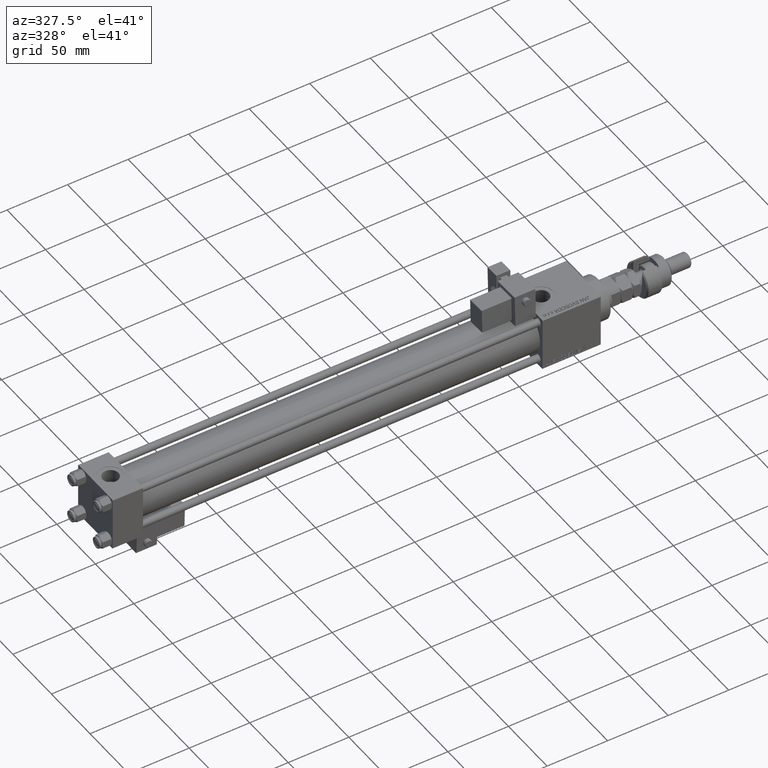
[diagram: clean part render]
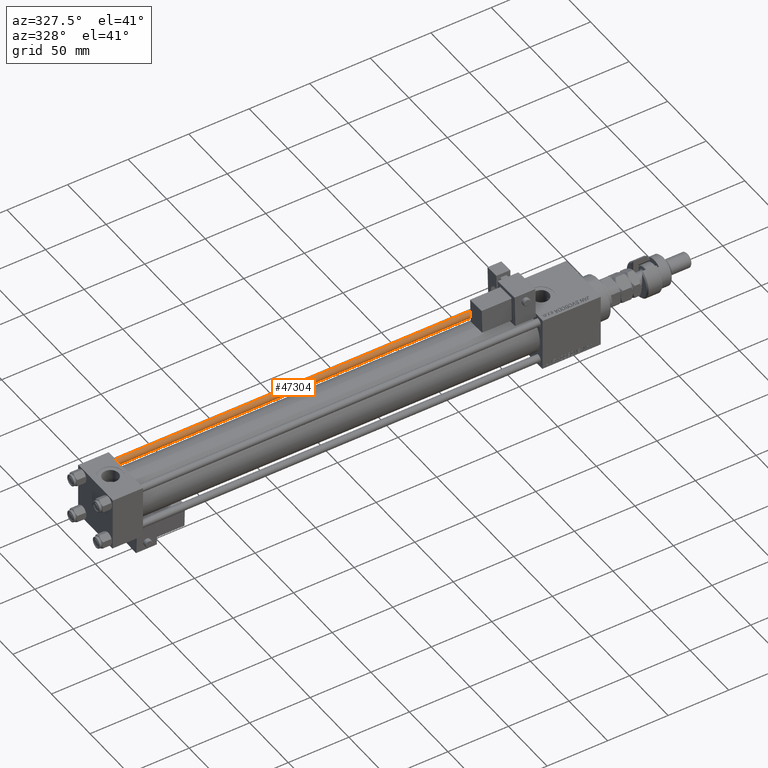
[diagram: same view with one face highlighted and labeled with its STEP entity id]
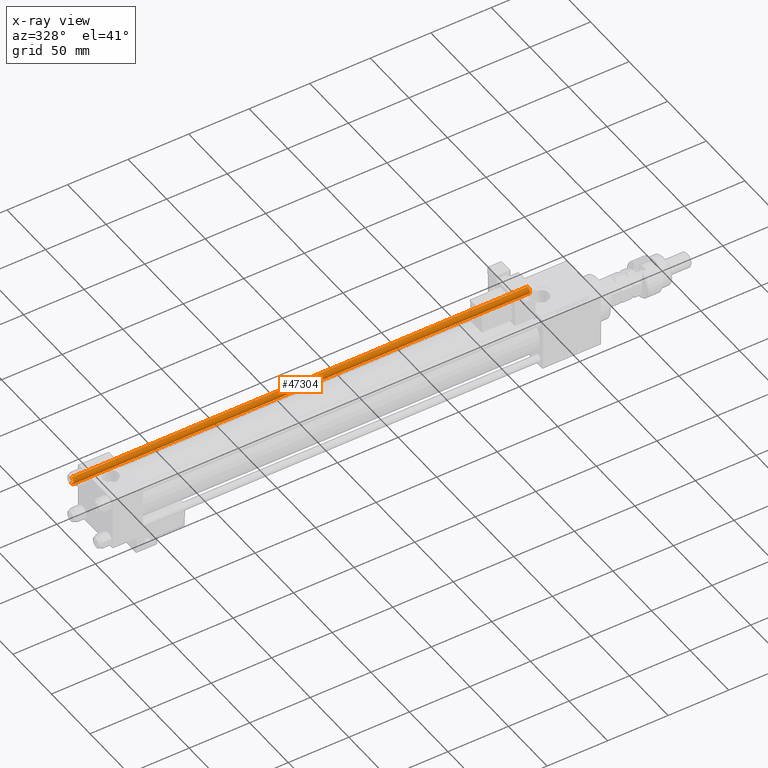
[diagram: x-ray of the same camera — body ghosted, the highlighted face saturated]
A machine part, auxiliary view. The second image highlights one B-rep face of the part: STEP entity #47304.
The next image is the same camera in x-ray: the body ghosted, the highlighted face saturated — about 0% of this face is hidden behind the body in this view.
In plain terms, the highlighted cylindrical surface (edge-blend (fillet) strip) has radius 3 mm, axis along (-1, 0, 0).
Its self-contained STEP definition (entity closure, byte-faithful):
#997 = CARTESIAN_POINT ( 'NONE',  ( -3.000000000000000444, 0.000000000000000000, 378.0000000000000000 ) ) ;
#3929 = DIRECTION ( 'NONE',  ( -0.000000000000000000, -0.000000000000000000, -1.000000000000000000 ) ) ;
#4262 = VERTEX_POINT ( 'NONE', #44256 ) ;
#4892 = DIRECTION ( 'NONE',  ( -1.000000000000000000, 0.000000000000000000, 0.000000000000000000 ) ) ;
#5092 = VERTEX_POINT ( 'NONE', #33854 ) ;
#9382 = FACE_OUTER_BOUND ( 'NONE', #21954, .T. ) ;
#11465 = DIRECTION ( 'NONE',  ( -0.000000000000000000, -0.000000000000000000, 1.000000000000000000 ) ) ;
#12887 = AXIS2_PLACEMENT_3D ( 'NONE', #18386, #23141, #39419 ) ;
#13332 = LINE ( 'NONE', #997, #35487 ) ;
#14671 = ORIENTED_EDGE ( 'NONE', *, *, #47639, .T. ) ;
#14688 = CIRCLE ( 'NONE', #12887, 3.000000000000000444 ) ;
#15308 = ORIENTED_EDGE ( 'NONE', *, *, #24925, .T. ) ;
#16194 = VECTOR ( 'NONE', #3929, 1000.000000000000000 ) ;
#18386 = CARTESIAN_POINT ( 'NONE',  ( 0.000000000000000000, 0.000000000000000000, 377.5000000000000000 ) ) ;
#19912 = CARTESIAN_POINT ( 'NONE',  ( 3.000000000000000444, 3.673940397442060361E-16, 378.0000000000000000 ) ) ;
#21954 = EDGE_LOOP ( 'NONE', ( #47255, #14671, #15308, #53078 ) ) ;
#23141 = DIRECTION ( 'NONE',  ( 0.000000000000000000, 0.000000000000000000, -1.000000000000000000 ) ) ;
#23273 = CARTESIAN_POINT ( 'NONE',  ( 3.000000000000000444, 3.673940397442060361E-16, 377.5000000000000000 ) ) ;
#24409 = LINE ( 'NONE', #19912, #16194 ) ;
#24925 = EDGE_CURVE ( 'NONE', #25485, #5092, #13332, .T. ) ;
#25485 = VERTEX_POINT ( 'NONE', #48553 ) ;
#30774 = EDGE_CURVE ( 'NONE', #5092, #4262, #34081, .T. ) ;
#32573 = AXIS2_PLACEMENT_3D ( 'NONE', #43264, #51121, #4892 ) ;
#33854 = CARTESIAN_POINT ( 'NONE',  ( -3.000000000000000444, 0.000000000000000000, 0.5000000000000004441 ) ) ;
#34081 = CIRCLE ( 'NONE', #35031, 3.000000000000000444 ) ;
#34496 = EDGE_CURVE ( 'NONE', #55165, #4262, #24409, .T. ) ;
#35031 = AXIS2_PLACEMENT_3D ( 'NONE', #37240, #11465, #36691 ) ;
#35487 = VECTOR ( 'NONE', #39388, 1000.000000000000000 ) ;
#36691 = DIRECTION ( 'NONE',  ( 1.000000000000000000, 0.000000000000000000, 0.000000000000000000 ) ) ;
#37240 = CARTESIAN_POINT ( 'NONE',  ( 0.000000000000000000, 0.000000000000000000, 0.5000000000000004441 ) ) ;
#39388 = DIRECTION ( 'NONE',  ( -0.000000000000000000, -0.000000000000000000, -1.000000000000000000 ) ) ;
#39419 = DIRECTION ( 'NONE',  ( 1.000000000000000000, 0.000000000000000000, 0.000000000000000000 ) ) ;
#43264 = CARTESIAN_POINT ( 'NONE',  ( 0.000000000000000000, 0.000000000000000000, 378.0000000000000000 ) ) ;
#44256 = CARTESIAN_POINT ( 'NONE',  ( 3.000000000000000444, 3.673940397442060361E-16, 0.5000000000000004441 ) ) ;
#46912 = CYLINDRICAL_SURFACE ( 'NONE', #32573, 3.000000000000000444 ) ;
#47255 = ORIENTED_EDGE ( 'NONE', *, *, #34496, .F. ) ;
#47304 = ADVANCED_FACE ( 'NONE', ( #9382 ), #46912, .T. ) ;
#47639 = EDGE_CURVE ( 'NONE', #55165, #25485, #14688, .T. ) ;
#48553 = CARTESIAN_POINT ( 'NONE',  ( -3.000000000000000444, 0.000000000000000000, 377.5000000000000000 ) ) ;
#51121 = DIRECTION ( 'NONE',  ( -0.000000000000000000, -0.000000000000000000, -1.000000000000000000 ) ) ;
#53078 = ORIENTED_EDGE ( 'NONE', *, *, #30774, .T. ) ;
#55165 = VERTEX_POINT ( 'NONE', #23273 ) ;